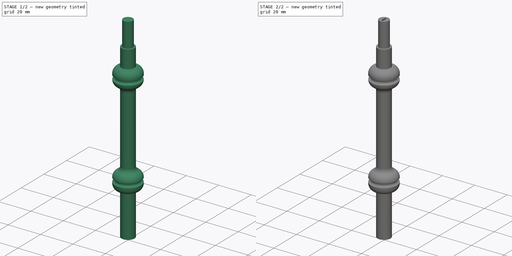
[diagram: build sequence overview — one tinted view per stage of 2, left to right]
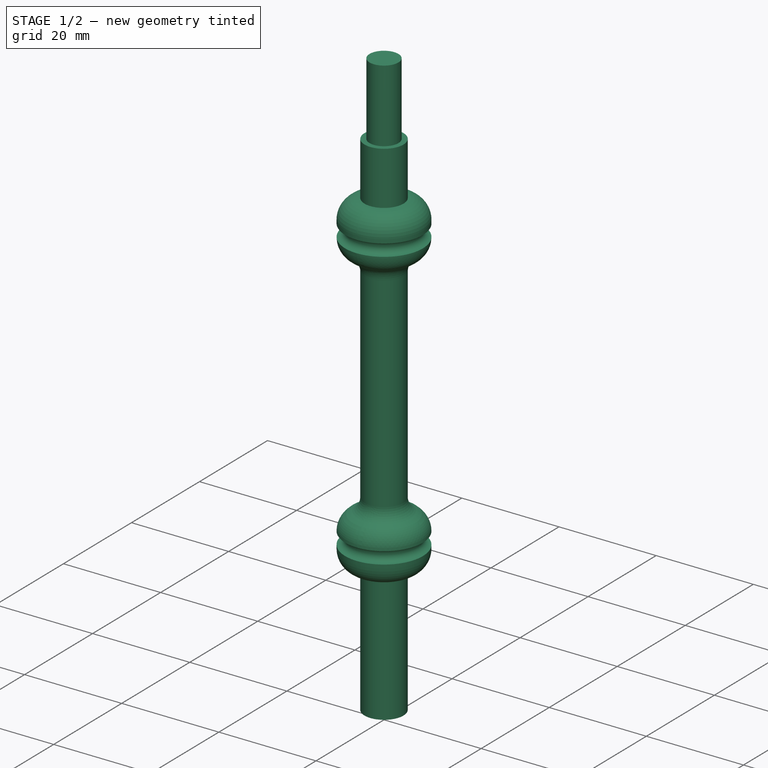
[diagram: stage 1 of 2 — iso view after this stage's code; geometry added in this stage tinted green]
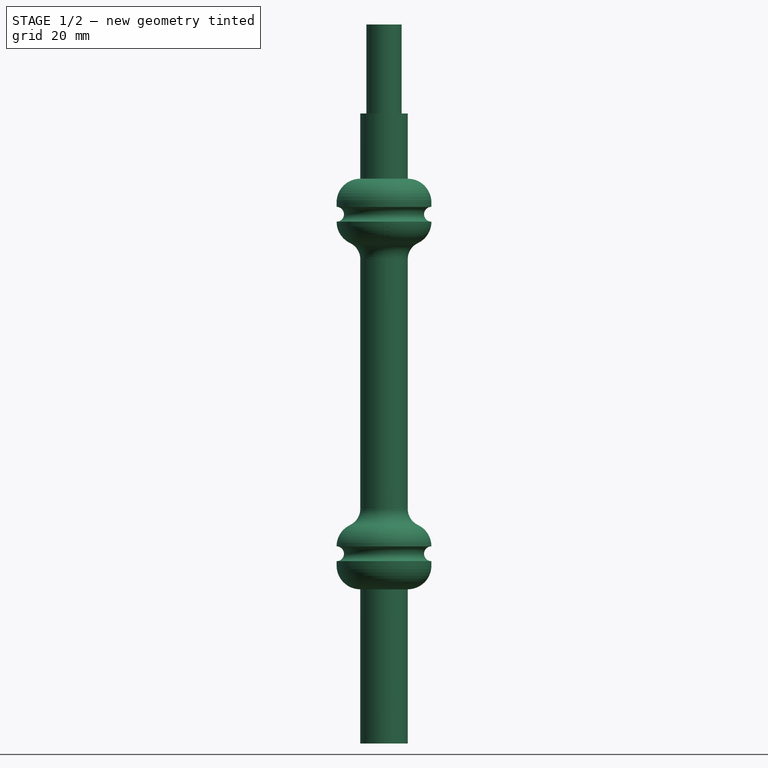
[diagram: stage 1 of 2 — front view after this stage's code; geometry added in this stage tinted green]
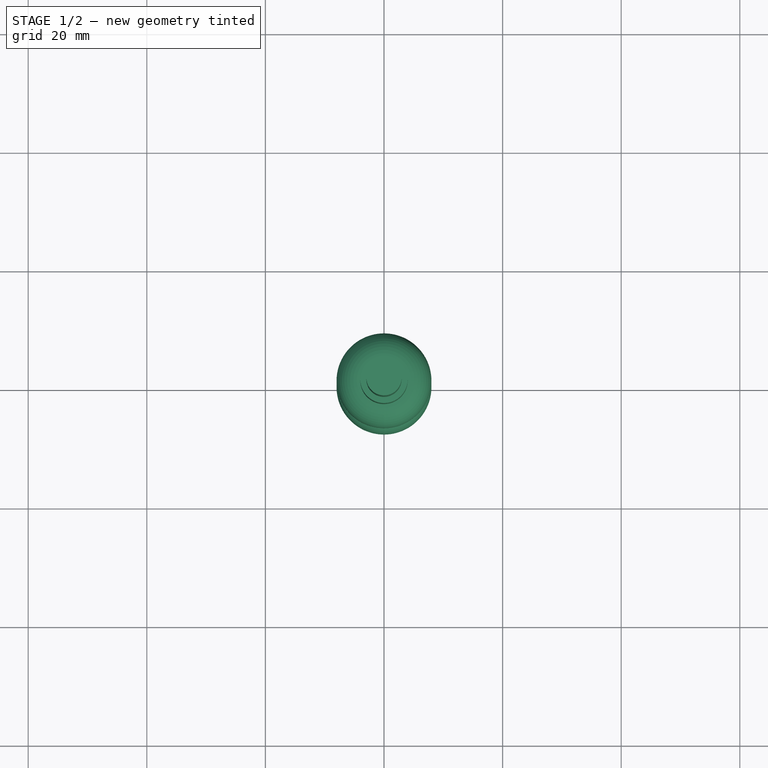
[diagram: stage 1 of 2 — top view after this stage's code; geometry added in this stage tinted green]
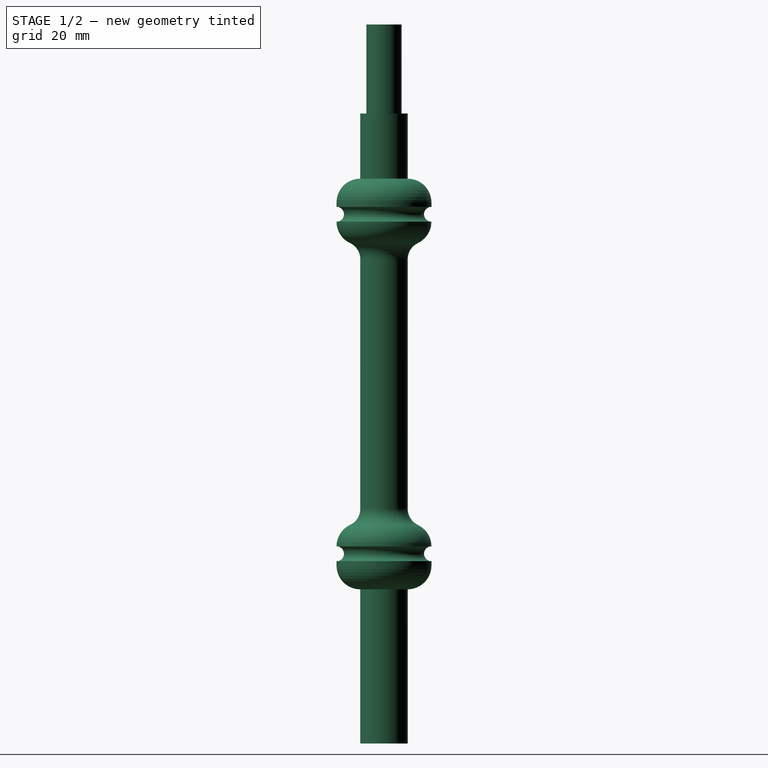
[diagram: stage 1 of 2 — right view after this stage's code; geometry added in this stage tinted green]
FCSTD DOCUMENT  (FreeCAD 0.19R22670 (Git))
Label: roller1n
License: All rights reserved
LicenseURL: http://en.wikipedia.org/wiki/All_rights_reserved
objects: Sketcher::SketchObject×2, PartDesign::Revolution×1, PartDesign::Fillet×1, PartDesign::Pocket×1, PartDesign::Body×1
note: 9 computed .brp shape members not serialized (recipe doc carries the construction recipe); baked Part::Feature solids carry a one-line shape summary decoded from their .brp

FEATURE [Sketcher::SketchObject] Sketch
  MapMode = 5
  Placement = pos=(0,0,0) rot=(0.57735,0.57735,0.57735;2.0944rad)
  Support = -> [YZ_Plane]
  sketch-geometry (17):
    g0: LineSegment StartX=0 StartY=0 StartZ=0 EndX=-4 EndY=0 EndZ=0
    g1: LineSegment StartX=-4 StartY=0 StartZ=0 EndX=-4 EndY=26 EndZ=0
    g2: ArcOfCircle CenterX=-8 CenterY=32 CenterZ=0 NormalX=0 NormalY=0 NormalZ=1 AngleXU=0 Radius=1.25 StartAngle=4.71239 EndAngle=7.85398
    g3: ArcOfCircle CenterX=-4 CenterY=33.25 CenterZ=0 NormalX=0 NormalY=0 NormalZ=1 AngleXU=0 Radius=4 StartAngle=1.5708 EndAngle=3.14159
    g4: LineSegment StartX=-4 StartY=37.25 StartZ=0 EndX=-4 EndY=84 EndZ=0
    g5: LineSegment StartX=-2.97 StartY=106.25 StartZ=0 EndX=-4 EndY=106.25 EndZ=0
    g6: LineSegment StartX=-4 StartY=106.25 StartZ=0 EndX=-4 EndY=95.25 EndZ=0
    g7: ArcOfCircle CenterX=-8 CenterY=89.25 CenterZ=0 NormalX=0 NormalY=0 NormalZ=1 AngleXU=0 Radius=1.25 StartAngle=4.71239 EndAngle=7.85398
    g8: ArcOfCircle CenterX=-4 CenterY=88 CenterZ=0 NormalX=0 NormalY=0 NormalZ=1 AngleXU=0 Radius=4 StartAngle=3.14159 EndAngle=4.71239
    g9: LineSegment StartX=0 StartY=0 StartZ=0 EndX=0 EndY=106.25 EndZ=0
    g10: LineSegment StartX=0 StartY=106.25 StartZ=0 EndX=0 EndY=121.25 EndZ=0
    g11: LineSegment StartX=0 StartY=121.25 StartZ=0 EndX=-2.97 EndY=121.25 EndZ=0
    g12: LineSegment StartX=-2.97 StartY=121.25 StartZ=0 EndX=-2.97 EndY=106.25 EndZ=0
    g13: LineSegment StartX=-8 StartY=90.5 StartZ=0 EndX=-8 EndY=91.25 EndZ=0
    g14: ArcOfCircle CenterX=-4 CenterY=91.25 CenterZ=0 NormalX=0 NormalY=0 NormalZ=1 AngleXU=0 Radius=4 StartAngle=1.5708 EndAngle=3.14159
    g15: LineSegment StartX=-8 StartY=30.75 StartZ=0 EndX=-8 EndY=30 EndZ=0
    g16: ArcOfCircle CenterX=-4 CenterY=30 CenterZ=0 NormalX=0 NormalY=0 NormalZ=1 AngleXU=0 Radius=4 StartAngle=3.14159 EndAngle=4.71239
  constraints (54):
    c: Coincident(g0,g1)
    c: Perpendicular(g2,g3) = 1.5708
    c: Angle(g3) = 1.5708
    c: DistanceX(g0,g0) = 4
    c: DistanceY(g1,g1) = 26
    c: Coincident(g0,g-1)
    c: Perpendicular(g1,g0)
    c: Radius(g3) = 4
    c: Radius(g2) = 1.25
    c: DistanceY(g4,g4) = 46.75
    c: Vertical(g4,g3)
    c: Coincident(g4,g3)
    c: Coincident(g5,g6)
    c: Perpendicular(g7,g8) = 4.71239
    c: Angle(g8) = 1.5708
    c: DistanceX(g5,g9) = 4
    c: Perpendicular(g-2,g5)
    c: Vertical(g8,g8)
    c: Radius(g7) = 1.25
    c: Radius(g8) = 4
    c: Coincident(g8,g4)
    c: DistanceY(g6,g6) = 11
    c: Vertical(g7,g7)
    c: Vertical(g1)
    c: Coincident(g9,g0)
    c: Coincident(g10,g11)
    c: Coincident(g11,g12)
    c: Vertical(g11,g12)
    c: Coincident(g9,g10)
    c: PointOnObject(g10,g-2)
    c: Horizontal(g10,g11)
    c: DistanceY(g10,g10) = 15
    c: DistanceX(g11,g11) = 2.97
    c: Coincident(g5,g12)
    c: Horizontal(g9,g5)
    c: DistanceY(g13,g13) = 0.75
    c: Vertical(g14,g8)
    c: Coincident(g14,g6)
    c: DistanceY(g15,g15) = 0.75
    c: Vertical(g16,g3)
    c: Coincident(g16,g1)
    c: Coincident(g15,g16)
    c: Coincident(g15,g2)
    c: Vertical(g15)
    c: Radius(g16) = 4
    c: Radius(g14) = 4
    c: Coincident(g14,g13)
    c: Vertical(g13)
    c: Coincident(g13,g7)
    c: Angle(g14) = 1.5708
    c: Angle(g16) = 1.5708
    c: Vertical(g6)
    c: PointOnObject(g9,g-2)
    c: Angle(g2) = 3.14159
FEATURE [PartDesign::Revolution] Revolution
  Angle = 360
  Axis = (-2e-16,3e-16,1)
  Base = (0,0,0)
  Placement = pos=(0,0,0) rot=(0.57735,0.57735,0.57735;2.0944rad)
  Profile = -> Sketch
  ReferenceAxis = -> Sketch [V_Axis]
FEATURE [PartDesign::Fillet] Fillet
  Base = -> Revolution [Face7]
  BaseFeature = -> Revolution
  Placement = pos=(0,0,0) rot=(0.57735,0.57735,0.57735;2.0944rad)
  Radius = 3
  Refine = true
  SupportTransform = true
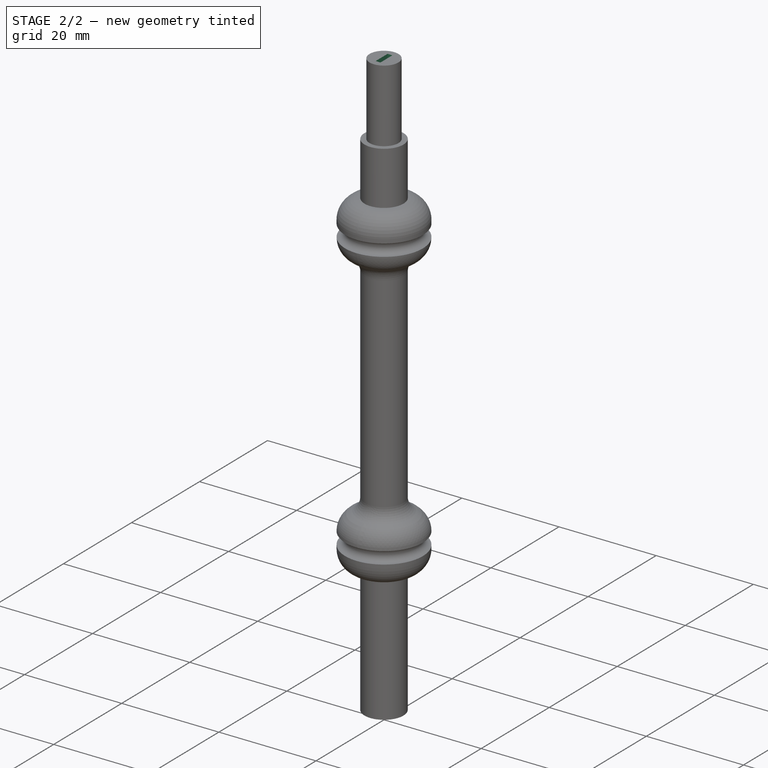
[diagram: stage 2 of 2 — iso view after this stage's code; geometry added in this stage tinted green]
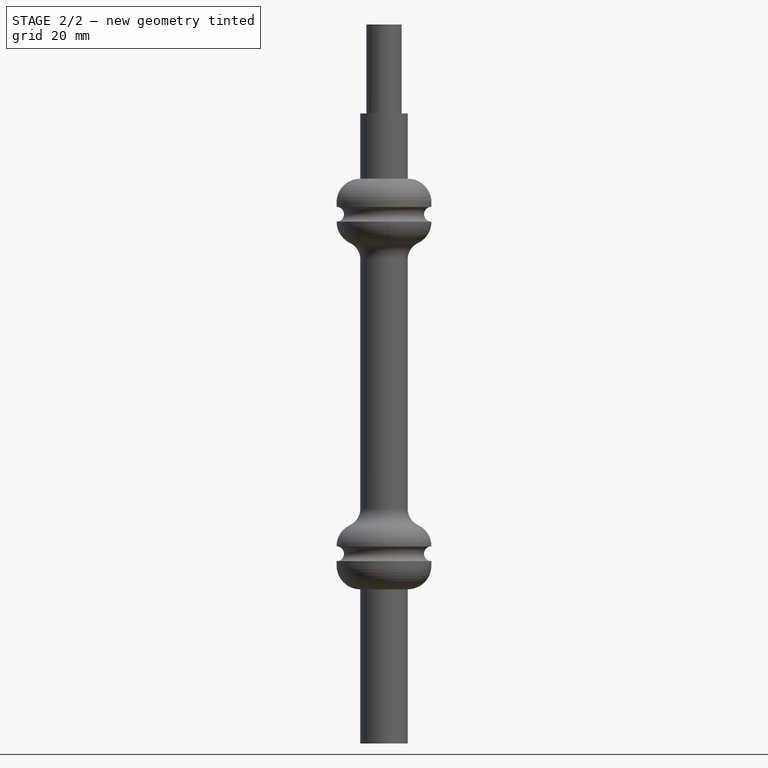
[diagram: stage 2 of 2 — front view after this stage's code; geometry added in this stage tinted green]
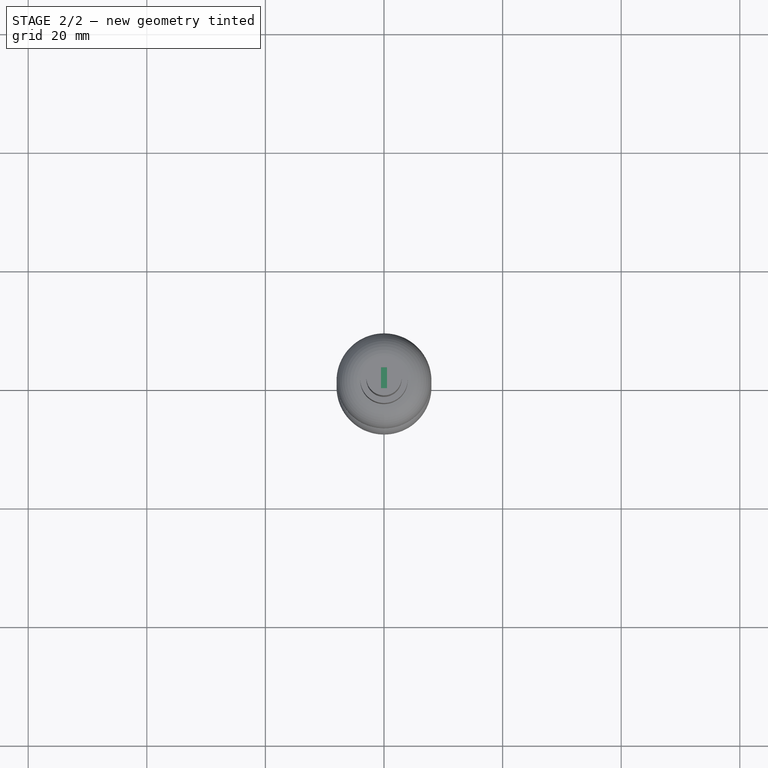
[diagram: stage 2 of 2 — top view after this stage's code; geometry added in this stage tinted green]
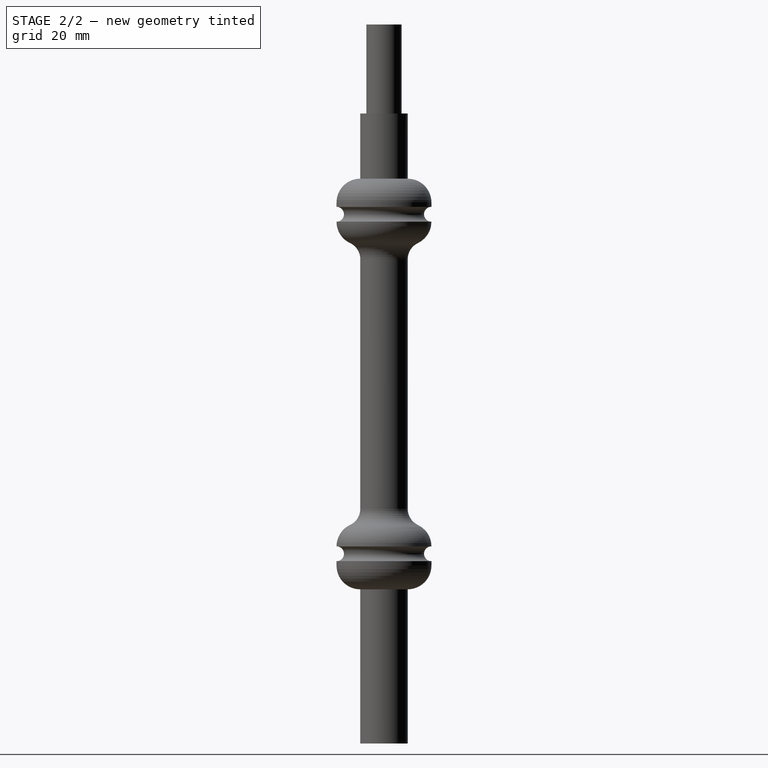
[diagram: stage 2 of 2 — right view after this stage's code; geometry added in this stage tinted green]
FEATURE [Sketcher::SketchObject] Sketch001
  MapMode = 5
  Placement = pos=(-6.73e-14,4.71e-14,121.25) rot=(0,0,-1;1.5708rad)
  Support = -> [Fillet]
  sketch-geometry (4):
    g0: LineSegment StartX=-1.75 StartY=-0.5 StartZ=0 EndX=1.75 EndY=-0.5 EndZ=0
    g1: LineSegment StartX=1.75 StartY=-0.5 StartZ=0 EndX=1.75 EndY=0.5 EndZ=0
    g2: LineSegment StartX=1.75 StartY=0.5 StartZ=0 EndX=-1.75 EndY=0.5 EndZ=0
    g3: LineSegment StartX=-1.75 StartY=0.5 StartZ=0 EndX=-1.75 EndY=-0.5 EndZ=0
  constraints (11):
    c: Coincident(g0,g1)
    c: Coincident(g1,g2)
    c: Coincident(g2,g3)
    c: Coincident(g3,g0)
    c: Horizontal(g0)
    c: Horizontal(g2)
    c: Vertical(g1)
    c: Vertical(g3)
    c: DistanceX(g2,g2) = 3.5
    c: Symmetric(g0,g1,g-1)
    c: DistanceY(g3,g3) = 1
FEATURE [PartDesign::Pocket] Pocket
  BaseFeature = -> Fillet
  Length = 1.2
  Length2 = 100
  Placement = pos=(0,0,0) rot=(0.57735,0.57735,0.57735;2.0944rad)
  Profile = -> Sketch001
  Type = 0
FEATURE [PartDesign::Body] Body
  Group = -> [Sketch,Revolution,Fillet,Sketch001,Pocket]
  Origin = -> Origin
  Tip = -> Pocket
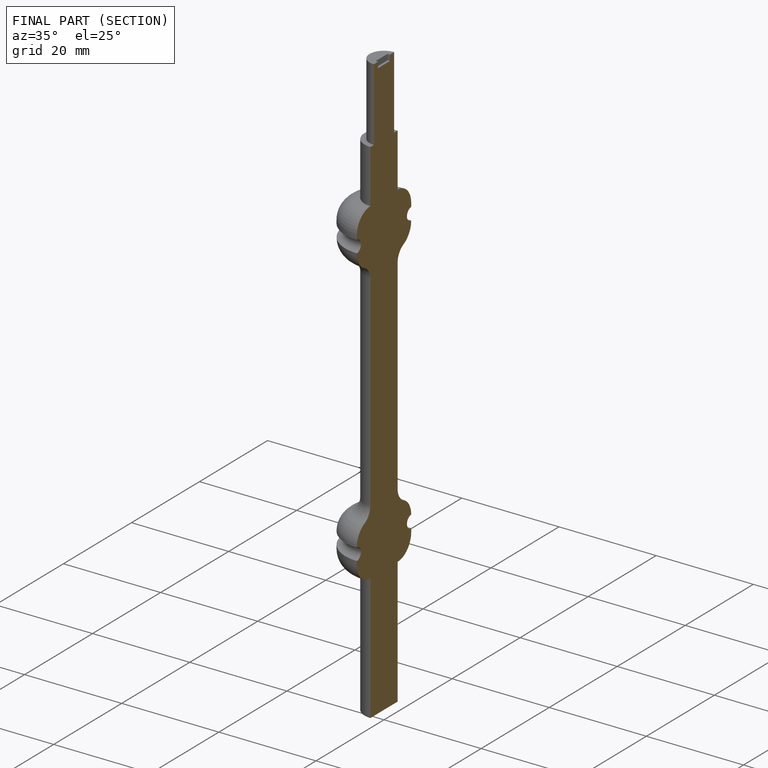
[diagram: finished part — half-section view (interior)]
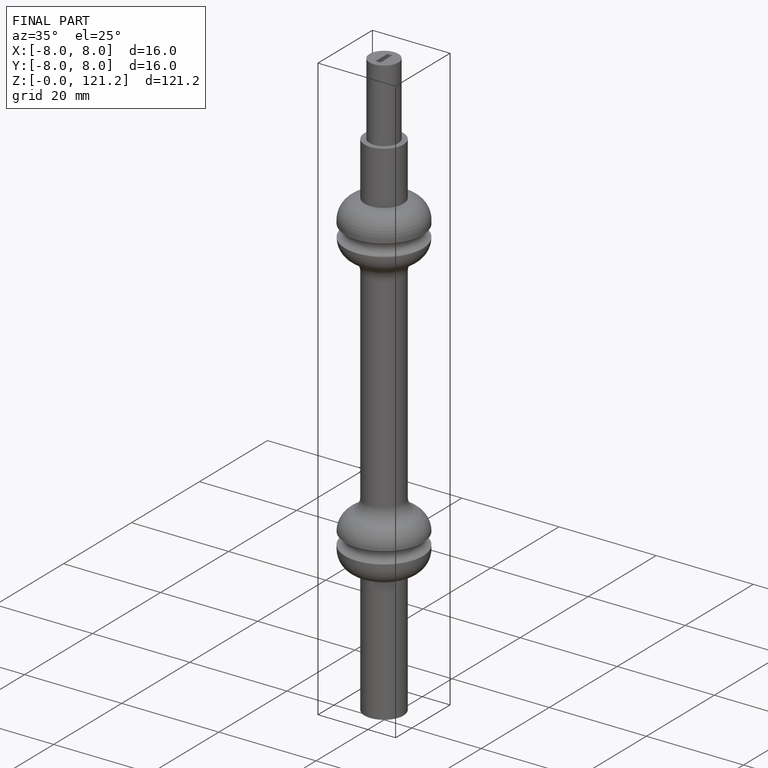
[diagram: finished part — iso view with bounding-box wireframe]
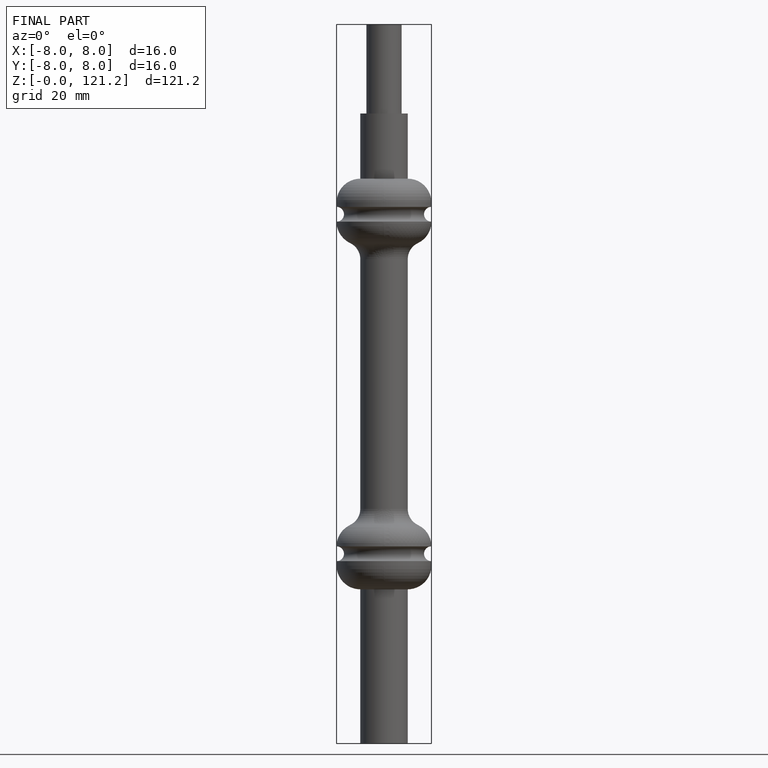
[diagram: finished part — front view with bounding-box wireframe]
